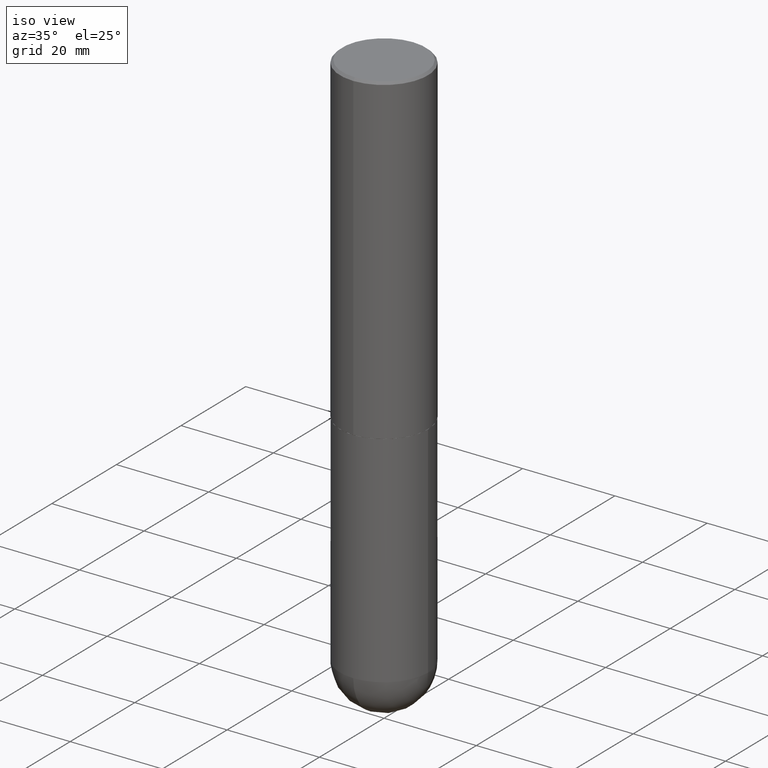
[diagram: clean part render]
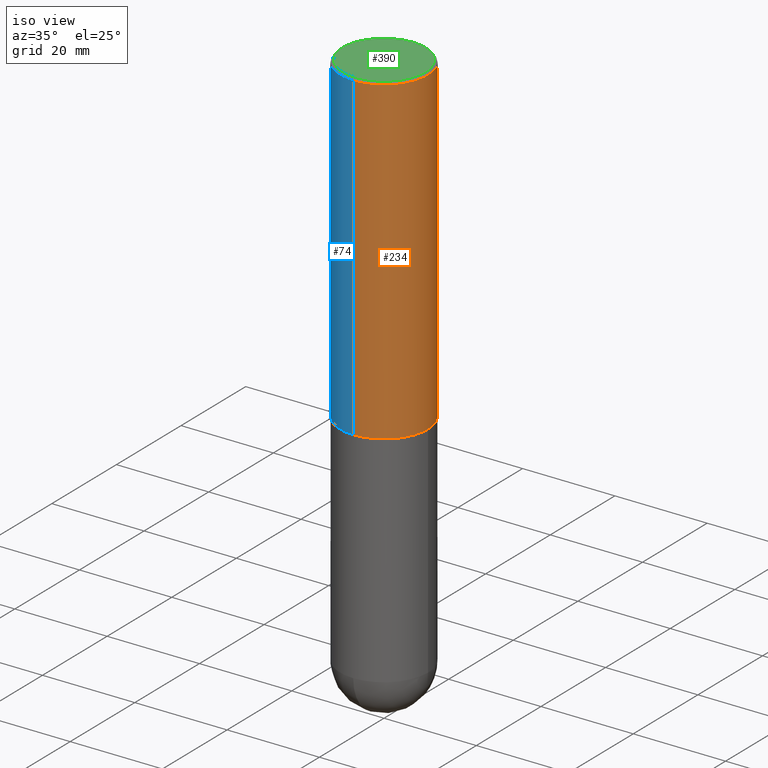
[diagram: same view with three faces highlighted in distinct colors, each labeled with its STEP entity id]
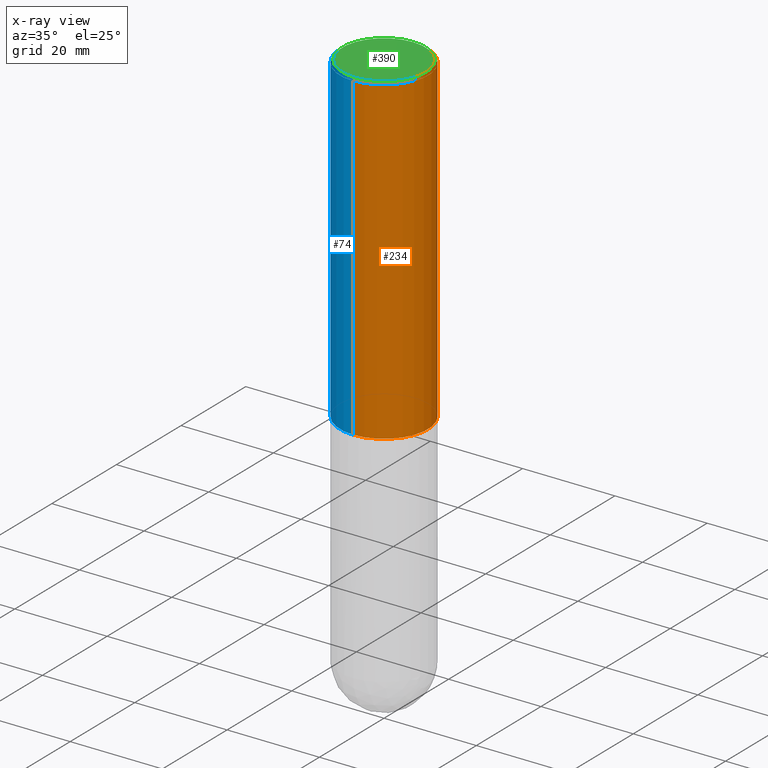
[diagram: x-ray of the same camera — body ghosted, the three highlighted faces saturated]
A machine part, iso view with three faces highlighted in distinct colors.
The next image is the same camera in x-ray (body ghosted, the three faces saturated) — at least one of them is partly hidden behind the body in this view.
Their STEP definitions:

[orange] entity #234 — the highlighted cylindrical surface (partial cylindrical patch) has radius 9.525 mm, axis along (-0, 0, 1).
#5 = DIRECTION ( 'NONE',  ( -6.982962677686266711E-15, -1.000000000000000000, 3.492313078518903376E-15 ) ) ;
#6 = AXIS2_PLACEMENT_3D ( 'NONE', #104, #55, #289 ) ;
#8 = DIRECTION ( 'NONE',  ( -2.444888005473800237E-29, 3.492313078518902982E-15, 1.000000000000000000 ) ) ;
#16 = CARTESIAN_POINT ( 'NONE',  ( 6.720997127047476541E-29, -9.600368652848465980E-15, -2.749000000000000110 ) ) ;
#29 = ORIENTED_EDGE ( 'NONE', *, *, #262, .F. ) ;
#33 = CIRCLE ( 'NONE', #241, 0.3750000000000004441 ) ;
#34 = VERTEX_POINT ( 'NONE', #93 ) ;
#50 = DIRECTION ( 'NONE',  ( -2.444888005473800237E-29, 3.492313078518902982E-15, 1.000000000000000000 ) ) ;
#55 = DIRECTION ( 'NONE',  ( -2.444888005473799957E-29, 3.492313078518902982E-15, 1.000000000000000000 ) ) ;
#56 = EDGE_CURVE ( 'NONE', #175, #138, #252, .T. ) ;
#63 = VECTOR ( 'NONE', #8, 39.37007874015748143 ) ;
#83 = ORIENTED_EDGE ( 'NONE', *, *, #355, .T. ) ;
#93 = CARTESIAN_POINT ( 'NONE',  ( -2.618611004132286119E-15, -0.3750000000000100475, -2.748999999999999222 ) ) ;
#104 = CARTESIAN_POINT ( 'NONE',  ( 4.889776010947621353E-31, -6.984626157037836483E-17, -0.02000000000000008715 ) ) ;
#115 = EDGE_CURVE ( 'NONE', #237, #138, #359, .T. ) ;
#124 = FACE_OUTER_BOUND ( 'NONE', #136, .T. ) ;
#133 = CYLINDRICAL_SURFACE ( 'NONE', #229, 0.3750000000000002220 ) ;
#136 = EDGE_LOOP ( 'NONE', ( #83, #412, #155, #29 ) ) ;
#138 = VERTEX_POINT ( 'NONE', #370 ) ;
#151 = DIRECTION ( 'NONE',  ( -2.444888005473799957E-29, 3.492313078518902982E-15, 1.000000000000000000 ) ) ;
#155 = ORIENTED_EDGE ( 'NONE', *, *, #115, .F. ) ;
#175 = VERTEX_POINT ( 'NONE', #282 ) ;
#183 = CARTESIAN_POINT ( 'NONE',  ( -2.618611004132351594E-15, -0.3750000000000002220, 1.309617404444589506E-15 ) ) ;
#219 = CARTESIAN_POINT ( 'NONE',  ( -2.572686749164323153E-15, -0.3750000000000000555, -0.01999999999999877570 ) ) ;
#229 = AXIS2_PLACEMENT_3D ( 'NONE', #387, #151, #5 ) ;
#234 = ADVANCED_FACE ( 'NONE', ( #124 ), #133, .T. ) ;
#237 = VERTEX_POINT ( 'NONE', #219 ) ;
#241 = AXIS2_PLACEMENT_3D ( 'NONE', #16, #253, #292 ) ;
#252 = LINE ( 'NONE', #357, #296 ) ;
#253 = DIRECTION ( 'NONE',  ( -2.444888005473799957E-29, 3.492313078518902982E-15, 1.000000000000000000 ) ) ;
#262 = EDGE_CURVE ( 'NONE', #34, #237, #280, .T. ) ;
#280 = LINE ( 'NONE', #183, #63 ) ;
#282 = CARTESIAN_POINT ( 'NONE',  ( 2.664535259100411196E-15, 0.3749999999999907851, -2.749000000000000998 ) ) ;
#289 = DIRECTION ( 'NONE',  ( -6.982962677686266711E-15, -1.000000000000000000, 3.494488891895537218E-15 ) ) ;
#292 = DIRECTION ( 'NONE',  ( -6.982962677686265922E-15, -1.000000000000000000, 2.913971193241877216E-15 ) ) ;
#296 = VECTOR ( 'NONE', #50, 39.37007874015748143 ) ;
#355 = EDGE_CURVE ( 'NONE', #34, #175, #33, .T. ) ;
#357 = CARTESIAN_POINT ( 'NONE',  ( 2.664535259100376880E-15, 0.3750000000000002220, -1.309617404444589506E-15 ) ) ;
#359 = CIRCLE ( 'NONE', #6, 0.3749999999999999445 ) ;
#370 = CARTESIAN_POINT ( 'NONE',  ( 2.618611004132350016E-15, 0.3749999999999998890, -0.02000000000000139513 ) ) ;
#387 = CARTESIAN_POINT ( 'NONE',  ( 0.000000000000000000, 0.000000000000000000, 0.000000000000000000 ) ) ;
#412 = ORIENTED_EDGE ( 'NONE', *, *, #56, .T. ) ;

[blue] entity #74 — the highlighted cylindrical surface (partial cylindrical patch) has radius 9.525 mm, axis along (-0, 0, 1).
#8 = DIRECTION ( 'NONE',  ( -2.444888005473800237E-29, 3.492313078518902982E-15, 1.000000000000000000 ) ) ;
#34 = VERTEX_POINT ( 'NONE', #93 ) ;
#50 = DIRECTION ( 'NONE',  ( -2.444888005473800237E-29, 3.492313078518902982E-15, 1.000000000000000000 ) ) ;
#56 = EDGE_CURVE ( 'NONE', #175, #138, #252, .T. ) ;
#59 = ORIENTED_EDGE ( 'NONE', *, *, #178, .F. ) ;
#60 = EDGE_CURVE ( 'NONE', #175, #34, #161, .T. ) ;
#63 = VECTOR ( 'NONE', #8, 39.37007874015748143 ) ;
#74 = ADVANCED_FACE ( 'NONE', ( #84 ), #254, .T. ) ;
#78 = CARTESIAN_POINT ( 'NONE',  ( 0.000000000000000000, 0.000000000000000000, 0.000000000000000000 ) ) ;
#84 = FACE_OUTER_BOUND ( 'NONE', #264, .T. ) ;
#93 = CARTESIAN_POINT ( 'NONE',  ( -2.618611004132286119E-15, -0.3750000000000100475, -2.748999999999999222 ) ) ;
#106 = ORIENTED_EDGE ( 'NONE', *, *, #262, .T. ) ;
#110 = DIRECTION ( 'NONE',  ( -6.982962677686266711E-15, -1.000000000000000000, 3.494488891895537218E-15 ) ) ;
#111 = DIRECTION ( 'NONE',  ( -2.444888005473799957E-29, 3.492313078518902982E-15, 1.000000000000000000 ) ) ;
#138 = VERTEX_POINT ( 'NONE', #370 ) ;
#152 = AXIS2_PLACEMENT_3D ( 'NONE', #176, #410, #110 ) ;
#161 = CIRCLE ( 'NONE', #392, 0.3750000000000004441 ) ;
#175 = VERTEX_POINT ( 'NONE', #282 ) ;
#176 = CARTESIAN_POINT ( 'NONE',  ( 4.889776010947621353E-31, -6.984626157037836483E-17, -0.02000000000000008715 ) ) ;
#178 = EDGE_CURVE ( 'NONE', #138, #237, #190, .T. ) ;
#183 = CARTESIAN_POINT ( 'NONE',  ( -2.618611004132351594E-15, -0.3750000000000002220, 1.309617404444589506E-15 ) ) ;
#190 = CIRCLE ( 'NONE', #152, 0.3749999999999999445 ) ;
#203 = ORIENTED_EDGE ( 'NONE', *, *, #56, .F. ) ;
#210 = DIRECTION ( 'NONE',  ( -6.982962677686265922E-15, -1.000000000000000000, 2.913971193241877216E-15 ) ) ;
#219 = CARTESIAN_POINT ( 'NONE',  ( -2.572686749164323153E-15, -0.3750000000000000555, -0.01999999999999877570 ) ) ;
#237 = VERTEX_POINT ( 'NONE', #219 ) ;
#252 = LINE ( 'NONE', #357, #296 ) ;
#254 = CYLINDRICAL_SURFACE ( 'NONE', #257, 0.3750000000000002220 ) ;
#257 = AXIS2_PLACEMENT_3D ( 'NONE', #78, #111, #323 ) ;
#262 = EDGE_CURVE ( 'NONE', #34, #237, #280, .T. ) ;
#264 = EDGE_LOOP ( 'NONE', ( #203, #267, #106, #59 ) ) ;
#267 = ORIENTED_EDGE ( 'NONE', *, *, #60, .T. ) ;
#280 = LINE ( 'NONE', #183, #63 ) ;
#282 = CARTESIAN_POINT ( 'NONE',  ( 2.664535259100411196E-15, 0.3749999999999907851, -2.749000000000000998 ) ) ;
#296 = VECTOR ( 'NONE', #50, 39.37007874015748143 ) ;
#299 = DIRECTION ( 'NONE',  ( -2.444888005473799957E-29, 3.492313078518902982E-15, 1.000000000000000000 ) ) ;
#323 = DIRECTION ( 'NONE',  ( -6.982962677686266711E-15, -1.000000000000000000, 3.492313078518903376E-15 ) ) ;
#325 = CARTESIAN_POINT ( 'NONE',  ( 6.720997127047476541E-29, -9.600368652848465980E-15, -2.749000000000000110 ) ) ;
#357 = CARTESIAN_POINT ( 'NONE',  ( 2.664535259100376880E-15, 0.3750000000000002220, -1.309617404444589506E-15 ) ) ;
#370 = CARTESIAN_POINT ( 'NONE',  ( 2.618611004132350016E-15, 0.3749999999999998890, -0.02000000000000139513 ) ) ;
#392 = AXIS2_PLACEMENT_3D ( 'NONE', #325, #299, #210 ) ;
#410 = DIRECTION ( 'NONE',  ( -2.444888005473799957E-29, 3.492313078518902982E-15, 1.000000000000000000 ) ) ;

[green] entity #390 — the highlighted planar face has unit normal (0, -0, -1).
#1 = EDGE_LOOP ( 'NONE', ( #23, #118 ) ) ;
#20 = DIRECTION ( 'NONE',  ( -6.982962677686265922E-15, -1.000000000000000000, 3.492313078518902587E-15 ) ) ;
#23 = ORIENTED_EDGE ( 'NONE', *, *, #76, .T. ) ;
#31 = AXIS2_PLACEMENT_3D ( 'NONE', #75, #137, #326 ) ;
#75 = CARTESIAN_POINT ( 'NONE',  ( -6.895002054019779943E-45, 9.848919785183189324E-31, 2.820170919315211210E-16 ) ) ;
#76 = EDGE_CURVE ( 'NONE', #335, #112, #354, .T. ) ;
#112 = VERTEX_POINT ( 'NONE', #239 ) ;
#118 = ORIENTED_EDGE ( 'NONE', *, *, #220, .T. ) ;
#137 = DIRECTION ( 'NONE',  ( -2.444888005473799957E-29, 3.492313078518902982E-15, 1.000000000000000000 ) ) ;
#140 = DIRECTION ( 'NONE',  ( 2.444888005473799676E-29, -3.492313078518902982E-15, -1.000000000000000000 ) ) ;
#154 = AXIS2_PLACEMENT_3D ( 'NONE', #295, #140, #263 ) ;
#166 = CARTESIAN_POINT ( 'NONE',  ( -6.895002054019779943E-45, 9.848919785183189324E-31, 2.820170919315211210E-16 ) ) ;
#169 = DIRECTION ( 'NONE',  ( -2.444888005473799957E-29, 3.492313078518902982E-15, 1.000000000000000000 ) ) ;
#196 = FACE_OUTER_BOUND ( 'NONE', #1, .T. ) ;
#220 = EDGE_CURVE ( 'NONE', #112, #335, #317, .T. ) ;
#239 = CARTESIAN_POINT ( 'NONE',  ( -2.504081769186607427E-15, -0.3549999999999996492, 1.521788234805730129E-15 ) ) ;
#263 = DIRECTION ( 'NONE',  ( 6.982962677686265922E-15, 1.000000000000000000, -3.492313078518902982E-15 ) ) ;
#295 = CARTESIAN_POINT ( 'NONE',  ( 2.478951750578621842E-15, 0.3549999999999996492, -1.098762596908448645E-15 ) ) ;
#317 = CIRCLE ( 'NONE', #31, 0.3549999999999996492 ) ;
#321 = AXIS2_PLACEMENT_3D ( 'NONE', #166, #169, #20 ) ;
#326 = DIRECTION ( 'NONE',  ( -6.982962677686265922E-15, -1.000000000000000000, 3.492313078518902587E-15 ) ) ;
#328 = PLANE ( 'NONE',  #154 ) ;
#335 = VERTEX_POINT ( 'NONE', #348 ) ;
#348 = CARTESIAN_POINT ( 'NONE',  ( 2.548781377355486324E-15, 0.3549999999999996492, -9.577540509426880847E-16 ) ) ;
#354 = CIRCLE ( 'NONE', #321, 0.3549999999999996492 ) ;
#390 = ADVANCED_FACE ( 'NONE', ( #196 ), #328, .F. ) ;